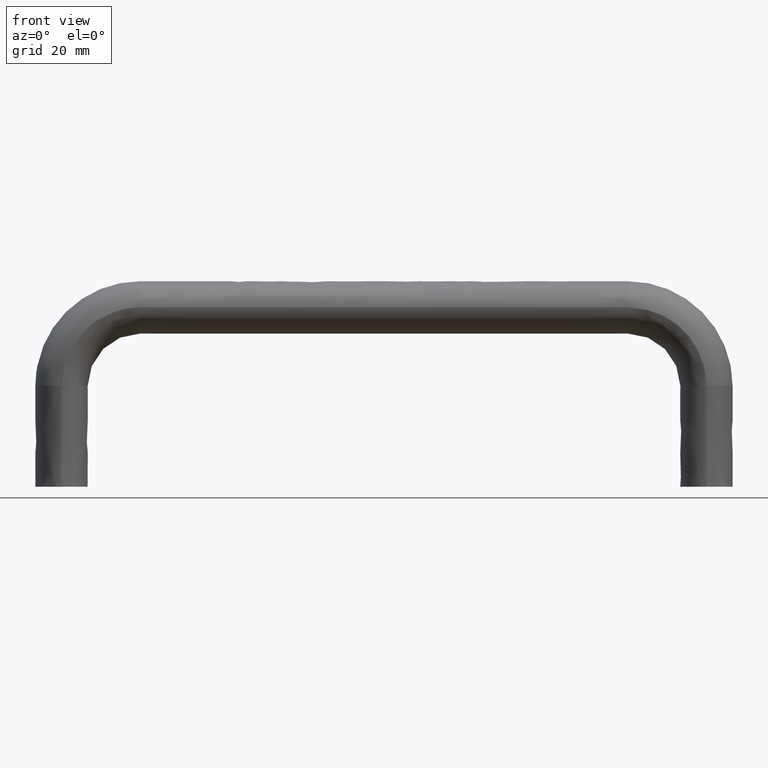
[diagram: clean part render]
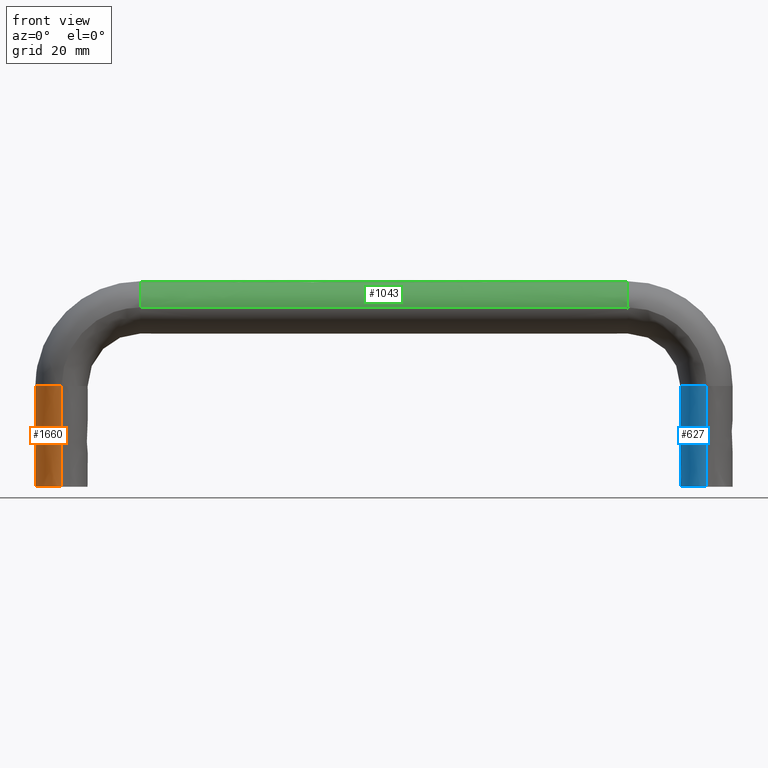
[diagram: same view with three faces highlighted in distinct colors, each labeled with its STEP entity id]
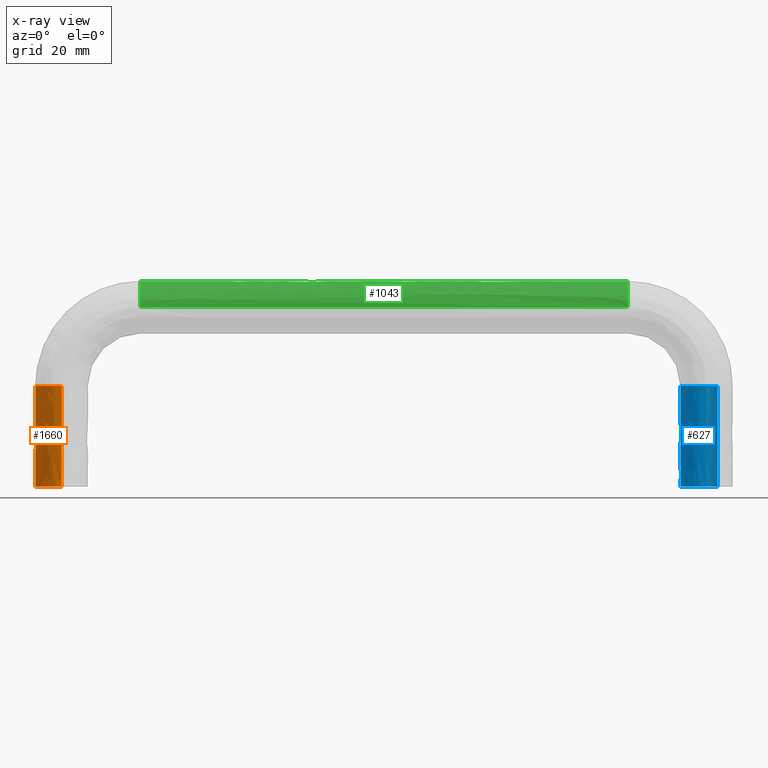
[diagram: x-ray of the same camera — body ghosted, the three highlighted faces saturated]
A machine part, front view with three faces highlighted in distinct colors.
The next image is the same camera in x-ray (body ghosted, the three faces saturated) — at least one of them is partly hidden behind the body in this view.
Their STEP definitions:

[orange] entity #1660 — the highlighted face is a freeform B-spline surface patch.
#1446=CARTESIAN_POINT('',(-2.765141685947758,9.039503756473197,25.0));
#1447=VERTEX_POINT('',#1446);
#1455=CARTESIAN_POINT('',(3.747003E-014,-10.0,25.0));
#1456=VERTEX_POINT('',#1455);
#1457=CARTESIAN_POINT('',(-2.765141685947758,9.039503756473197,25.0));
#1458=CARTESIAN_POINT('',(-3.442842478418609,8.550381046053946,25.0));
#1459=CARTESIAN_POINT('',(-4.066750527875190,7.885596350076813,25.0));
#1460=CARTESIAN_POINT('',(-5.799474873463780,5.219866587632820,25.0));
#1461=CARTESIAN_POINT('',(-6.500000000000000,2.617993877991495,25.0));
#1462=CARTESIAN_POINT('',(-6.500000000000000,-2.617993877991495,25.0));
#1463=CARTESIAN_POINT('',(-5.799474873463780,-5.219866587632820,25.0));
#1464=CARTESIAN_POINT('',(-3.392913281961335,-8.922269036098131,25.0));
#1465=CARTESIAN_POINT('',(-1.701696020694470,-10.0,25.0));
#1466=CARTESIAN_POINT('',(0.0,-10.0,25.0));
#1467=B_SPLINE_CURVE_WITH_KNOTS('',3,(#1457,#1458,#1459,#1460,#1461,#1462,#1463,#1464,#1465,#1466),.UNSPECIFIED.,.F.,.U.,(4,2,2,2,4),(0.570000000030455,0.625000000000000,0.750000000000000,0.875000000000000,1.0),.UNSPECIFIED.);
#1468=EDGE_CURVE('',#1447,#1456,#1467,.T.);
#1580=CARTESIAN_POINT('',(-2.765141685384861,9.039503756879462,0.0));
#1581=CARTESIAN_POINT('',(-3.442842477727653,8.550381046790173,0.0));
#1582=CARTESIAN_POINT('',(-4.066750527582020,7.885596350527845,0.0));
#1583=CARTESIAN_POINT('',(-5.799474873463780,5.219866587632820,0.0));
#1584=CARTESIAN_POINT('',(-6.500000000000000,2.617993877991495,0.0));
#1585=CARTESIAN_POINT('',(-6.500000000000000,-2.617993877991495,0.0));
#1586=CARTESIAN_POINT('',(-5.799474873463780,-5.219866587632820,0.0));
#1587=CARTESIAN_POINT('',(-3.392913281961335,-8.922269036098131,0.0));
#1588=CARTESIAN_POINT('',(-1.701696020694470,-10.0,0.0));
#1589=CARTESIAN_POINT('',(0.0,-10.0,0.0));
#1590=CARTESIAN_POINT('',(-2.765141685384861,9.039503756879462,8.333333330654059));
#1591=CARTESIAN_POINT('',(-3.442842477727653,8.550381046790173,8.333333330577235));
#1592=CARTESIAN_POINT('',(-4.066750527582020,7.885596350527845,8.333333330508435));
#1593=CARTESIAN_POINT('',(-5.799474873463780,5.219866587632820,8.333333330322921));
#1594=CARTESIAN_POINT('',(-6.500000000000000,2.617993877991495,8.333333330251030));
#1595=CARTESIAN_POINT('',(-6.500000000000000,-2.617993877991495,8.333333330251030));
#1596=CARTESIAN_POINT('',(-5.799474873463780,-5.219866587632820,8.333333330322921));
#1597=CARTESIAN_POINT('',(-3.392913281961335,-8.922269036098131,8.333333330580580));
#1598=CARTESIAN_POINT('',(-1.701696020694470,-10.0,8.333333330771989));
#1599=CARTESIAN_POINT('',(0.0,-10.0,8.333333330977931));
#1600=CARTESIAN_POINT('',(-2.765255463481482,9.039503756879462,16.666666670234068));
#1601=CARTESIAN_POINT('',(-3.442957903478828,8.550381046790173,16.666666670336351));
#1602=CARTESIAN_POINT('',(-4.066867394460879,7.885596350527845,16.666666670427951));
#1603=CARTESIAN_POINT('',(-5.799595541806690,5.219866587632820,16.666666670674950));
#1604=CARTESIAN_POINT('',(-6.500122100290400,2.617993877991495,16.666666670770699));
#1605=CARTESIAN_POINT('',(-6.500122100290400,-2.617993877991495,16.666666670770699));
#1606=CARTESIAN_POINT('',(-5.799595541806690,-5.219866587632820,16.666666670674950));
#1607=CARTESIAN_POINT('',(-3.393028670493060,-8.922269036098131,16.666666670331900));
#1608=CARTESIAN_POINT('',(-1.701807325264690,-10.0,16.666666670077049));
#1609=CARTESIAN_POINT('',(-0.000106634018478,-10.0,16.666666669802851));
#1610=CARTESIAN_POINT('',(-2.765141685384861,9.039503756879462,25.0));
#1611=CARTESIAN_POINT('',(-3.442842477727653,8.550381046790173,25.0));
#1612=CARTESIAN_POINT('',(-4.066750527582020,7.885596350527845,25.0));
#1613=CARTESIAN_POINT('',(-5.799474873463780,5.219866587632820,25.0));
#1614=CARTESIAN_POINT('',(-6.500000000000000,2.617993877991495,25.0));
#1615=CARTESIAN_POINT('',(-6.500000000000000,-2.617993877991495,25.0));
#1616=CARTESIAN_POINT('',(-5.799474873463780,-5.219866587632820,25.0));
#1617=CARTESIAN_POINT('',(-3.392913281961335,-8.922269036098131,25.0));
#1618=CARTESIAN_POINT('',(-1.701696020694470,-10.0,25.0));
#1619=CARTESIAN_POINT('',(0.0,-10.0,25.0));
#1620=B_SPLINE_SURFACE_WITH_KNOTS('',3,3,((#1580,#1590,#1600,#1610),(#1581,#1591,#1601,#1611),(#1582,#1592,#1602,#1612),(#1583,#1593,#1603,#1613),(#1584,#1594,#1604,#1614),(#1585,#1595,#1605,#1615),(#1586,#1596,#1606,#1616),(#1587,#1597,#1607,#1617),(#1588,#1598,#1608,#1618),(#1589,#1599,#1609,#1619)),.UNSPECIFIED.,.F.,.F.,.U.,(4,2,2,2,4),(4,4),(0.0,3.385193623603746,11.078815495430440,18.772437367257130,26.466059239083819),(0.0,25.000000004368740),.UNSPECIFIED.);
#1621=ORIENTED_EDGE('',*,*,#1468,.F.);
#1622=CARTESIAN_POINT('',(-2.767718893684363,9.043070626024541,-8.881784E-016));
#1623=VERTEX_POINT('',#1622);
#1624=CARTESIAN_POINT('',(-2.767718893684363,9.043070626024541,-8.881784E-016));
#1625=CARTESIAN_POINT('',(-2.766859824439105,9.041881669507809,8.333333330654059));
#1626=CARTESIAN_POINT('',(-2.766114533289547,9.040692712989802,16.666666670234068));
#1627=CARTESIAN_POINT('',(-2.765141685947758,9.039503756473197,25.0));
#1628=B_SPLINE_CURVE_WITH_KNOTS('',3,(#1624,#1625,#1626,#1627),.UNSPECIFIED.,.F.,.U.,(4,4),(0.0,0.107637498928565),.UNSPECIFIED.);
#1629=EDGE_CURVE('',#1623,#1447,#1628,.T.);
#1630=ORIENTED_EDGE('',*,*,#1629,.F.);
#1631=CARTESIAN_POINT('',(3.252607E-016,-10.0,0.0));
#1632=VERTEX_POINT('',#1631);
#1633=CARTESIAN_POINT('',(-2.767718893684363,9.043070626024541,-8.881784E-016));
#1634=CARTESIAN_POINT('',(-3.789574658975921,8.304902883799825,-8.612512E-016));
#1635=CARTESIAN_POINT('',(-4.593843456445049,7.067814539892249,-8.100902E-016));
#1636=CARTESIAN_POINT('',(-5.508528250209070,5.660889516472560,-7.519055E-016));
#1637=CARTESIAN_POINT('',(-6.003269068346501,3.824138429711683,-6.712987E-016));
#1638=CARTESIAN_POINT('',(-6.498383111718206,1.986001724805809,-5.906311E-016));
#1639=CARTESIAN_POINT('',(-6.498549654176726,-0.002007286109241,-4.998300E-016));
#1640=CARTESIAN_POINT('',(-6.498716322272424,-1.991516021929472,-4.089603E-016));
#1641=CARTESIAN_POINT('',(-6.004283234472764,-3.828126606434048,-3.217885E-016));
#1642=CARTESIAN_POINT('',(-5.509477153587726,-5.666122703084651,-2.345510E-016));
#1643=CARTESIAN_POINT('',(-4.595717391098286,-7.071727548601301,-1.642796E-016));
#1644=CARTESIAN_POINT('',(-3.681268301609643,-8.478392761853588,-9.395525E-017));
#1645=CARTESIAN_POINT('',(-2.487293505025900,-9.239001272481852,-5.128251E-017));
#1646=CARTESIAN_POINT('',(-1.292964223232612,-9.999835604013510,-8.597102E-018));
#1647=CARTESIAN_POINT('',(3.252607E-016,-10.0,0.0));
#1648=B_SPLINE_CURVE_WITH_KNOTS('',2,(#1633,#1634,#1635,#1636,#1637,#1638,#1639,#1640,#1641,#1642,#1643,#1644,#1645,#1646,#1647),.UNSPECIFIED.,.F.,.U.,(3,2,2,2,2,2,2,3),(0.140006435608934,0.250000000000000,0.375000000000000,0.500000000000000,0.625000000000000,0.750000000000000,0.875000000000000,1.0),.UNSPECIFIED.);
#1649=EDGE_CURVE('',#1623,#1632,#1648,.T.);
#1650=ORIENTED_EDGE('',*,*,#1649,.T.);
#1651=CARTESIAN_POINT('',(0.0,-10.0,0.0));
#1652=CARTESIAN_POINT('',(0.0,-10.0,8.333333330977931));
#1653=CARTESIAN_POINT('',(-0.000106634018477,-10.0,16.666666669802851));
#1654=CARTESIAN_POINT('',(0.0,-10.0,25.0));
#1655=B_SPLINE_CURVE_WITH_KNOTS('',3,(#1651,#1652,#1653,#1654),.UNSPECIFIED.,.F.,.U.,(4,4),(0.0,0.107637498928565),.UNSPECIFIED.);
#1656=EDGE_CURVE('',#1632,#1456,#1655,.T.);
#1657=ORIENTED_EDGE('',*,*,#1656,.T.);
#1658=EDGE_LOOP('',(#1621,#1630,#1650,#1657));
#1659=FACE_OUTER_BOUND('',#1658,.T.);
#1660=ADVANCED_FACE('',(#1659),#1620,.T.);

[blue] entity #627 — the highlighted face is a freeform B-spline surface patch.
#457=CARTESIAN_POINT('',(162.765148685947910,9.039503756473197,25.0));
#458=VERTEX_POINT('',#457);
#459=CARTESIAN_POINT('',(160.000007000000010,-10.0,25.0));
#460=VERTEX_POINT('',#459);
#474=CARTESIAN_POINT('',(160.000007000000010,-10.0,2.244912E-030));
#475=VERTEX_POINT('',#474);
#476=CARTESIAN_POINT('',(160.000007000000010,-10.0,25.0));
#477=CARTESIAN_POINT('',(160.000113633782490,-10.0,16.666666669802851));
#478=CARTESIAN_POINT('',(160.000007000000010,-10.0,8.333333330977830));
#479=CARTESIAN_POINT('',(160.000007000000010,-10.0,9.022597E-030));
#480=B_SPLINE_CURVE_WITH_KNOTS('',3,(#476,#477,#478,#479),.UNSPECIFIED.,.F.,.U.,(4,4),(0.892362501071435,1.0),.UNSPECIFIED.);
#481=EDGE_CURVE('',#460,#475,#480,.T.);
#483=CARTESIAN_POINT('',(162.767738318758490,9.043088330871754,-2.464482E-016));
#484=VERTEX_POINT('',#483);
#503=CARTESIAN_POINT('',(162.765148685947910,9.039503756473197,25.0));
#504=CARTESIAN_POINT('',(162.766125674772210,9.040698614605537,16.666666670234068));
#505=CARTESIAN_POINT('',(162.766875107821900,9.041893472739286,8.333333330653948));
#506=CARTESIAN_POINT('',(162.767738318758490,9.043088330871754,-2.464482E-016));
#507=B_SPLINE_CURVE_WITH_KNOTS('',3,(#503,#504,#505,#506),.UNSPECIFIED.,.F.,.U.,(4,4),(0.892362501071435,1.0),.UNSPECIFIED.);
#508=EDGE_CURVE('',#458,#484,#507,.T.);
#513=CARTESIAN_POINT('',(160.000007000000010,-10.0,25.0));
#514=CARTESIAN_POINT('',(158.298310979305510,-10.0,25.0));
#515=CARTESIAN_POINT('',(156.607093718038500,-8.922269036098131,25.0));
#516=CARTESIAN_POINT('',(154.200532126535990,-5.219866587632820,25.0));
#517=CARTESIAN_POINT('',(153.500007000000010,-2.617993877991495,25.0));
#518=CARTESIAN_POINT('',(153.500007000000010,2.617993877991495,25.0));
#519=CARTESIAN_POINT('',(154.200532126535990,5.219866587632830,25.0));
#520=CARTESIAN_POINT('',(156.607093718038500,8.922269036098131,25.0));
#521=CARTESIAN_POINT('',(158.298310979305510,10.0,25.0));
#522=CARTESIAN_POINT('',(160.952956771588900,10.0,25.0));
#523=CARTESIAN_POINT('',(161.902620404221410,9.662023569720375,25.0));
#524=CARTESIAN_POINT('',(162.765148685384990,9.039503756879462,25.0));
#525=CARTESIAN_POINT('',(160.000113633782490,-10.0,16.666666669802851));
#526=CARTESIAN_POINT('',(158.298412942535010,-10.0,16.666666669528649));
#527=CARTESIAN_POINT('',(156.607190375280000,-8.922269036098131,16.666666669238548));
#528=CARTESIAN_POINT('',(154.200620301817000,-5.219866587632820,16.666666668807000));
#529=CARTESIAN_POINT('',(153.500092469966010,-2.617993877991495,16.666666668677649));
#530=CARTESIAN_POINT('',(153.500092469966010,2.617993877991495,16.666666668677649));
#531=CARTESIAN_POINT('',(154.200620301681000,5.219866587632830,16.666666668806950));
#532=CARTESIAN_POINT('',(156.607190375280000,8.922269036098131,16.666666669238548));
#533=CARTESIAN_POINT('',(158.298412942535010,10.0,16.666666669528649));
#534=CARTESIAN_POINT('',(160.953066020881100,10.0,16.666666669956399));
#535=CARTESIAN_POINT('',(161.902732085082310,9.662023569720375,16.666666670103879));
#536=CARTESIAN_POINT('',(162.765262463272790,9.039503756879462,16.666666670234068));
#537=CARTESIAN_POINT('',(160.000007000000010,-10.0,8.333333330977830));
#538=CARTESIAN_POINT('',(158.298310979305510,-10.0,8.333333331183781));
#539=CARTESIAN_POINT('',(156.607093718038500,-8.922269036098131,8.333333331401660));
#540=CARTESIAN_POINT('',(154.200532126535990,-5.219866587632820,8.333333331725779));
#541=CARTESIAN_POINT('',(153.500007000000010,-2.617993877991495,8.333333331822900));
#542=CARTESIAN_POINT('',(153.500007000000010,2.617993877991495,8.333333331822900));
#543=CARTESIAN_POINT('',(154.200532126535990,5.219866587632830,8.333333331725800));
#544=CARTESIAN_POINT('',(156.607093718038500,8.922269036098131,8.333333331401660));
#545=CARTESIAN_POINT('',(158.298310979305510,10.0,8.333333331183781));
#546=CARTESIAN_POINT('',(160.952956771588900,10.0,8.333333330862498));
#547=CARTESIAN_POINT('',(161.902620404221410,9.662023569720375,8.333333330751726));
#548=CARTESIAN_POINT('',(162.765148685384990,9.039503756879462,8.333333330653948));
#549=CARTESIAN_POINT('',(160.000007000000010,-10.0,9.003722E-030));
#550=CARTESIAN_POINT('',(158.298310979305510,-10.0,3.027664E-016));
#551=CARTESIAN_POINT('',(156.607093718038500,-8.922269036098131,6.036683E-016));
#552=CARTESIAN_POINT('',(154.200532126535990,-5.219866587632820,1.031845E-015));
#553=CARTESIAN_POINT('',(153.500007000000010,-2.617993877991495,1.156482E-015));
#554=CARTESIAN_POINT('',(153.500007000000010,2.617993877991495,1.156482E-015));
#555=CARTESIAN_POINT('',(154.200532126535990,5.219866587632830,1.031845E-015));
#556=CARTESIAN_POINT('',(156.607093718038500,8.922269036098131,6.036683E-016));
#557=CARTESIAN_POINT('',(158.298310979305510,10.0,3.027664E-016));
#558=CARTESIAN_POINT('',(160.952956771588900,10.0,-1.695492E-016));
#559=CARTESIAN_POINT('',(161.902620404221410,9.662023569720375,-3.385137E-016));
#560=CARTESIAN_POINT('',(162.765148685384990,9.039503756879462,-4.919750E-016));
#561=B_SPLINE_SURFACE_WITH_KNOTS('',3,3,((#513,#525,#537,#549),(#514,#526,#538,#550),(#515,#527,#539,#551),(#516,#528,#540,#552),(#517,#529,#541,#553),(#518,#530,#542,#554),(#519,#531,#543,#555),(#520,#532,#544,#556),(#521,#533,#545,#557),(#522,#534,#546,#558),(#523,#535,#547,#559),(#524,#536,#548,#560)),.UNSPECIFIED.,.F.,.F.,.U.,(4,2,2,2,2,4),(4,4),(0.0,7.693622043938025,15.387244087876050,23.080866131814080,30.774488175752101,35.082916520357387),(0.0,25.000000003826312),.UNSPECIFIED.);
#562=CARTESIAN_POINT('',(160.000007000000010,10.0,25.0));
#563=VERTEX_POINT('',#562);
#564=CARTESIAN_POINT('',(160.000007000000010,10.0,25.0));
#565=CARTESIAN_POINT('',(160.952956772003490,10.0,25.0));
#566=CARTESIAN_POINT('',(161.902620405047710,9.662023569426289,25.0));
#567=CARTESIAN_POINT('',(162.765148685947910,9.039503756473197,25.0));
#568=B_SPLINE_CURVE_WITH_KNOTS('',3,(#564,#565,#566,#567),.UNSPECIFIED.,.F.,.U.,(4,4),(0.500000000000000,0.570000000030455),.UNSPECIFIED.);
#569=EDGE_CURVE('',#563,#458,#568,.T.);
#570=ORIENTED_EDGE('',*,*,#569,.T.);
#571=ORIENTED_EDGE('',*,*,#508,.T.);
#572=CARTESIAN_POINT('',(160.000007000000010,10.0,8.642611E-030));
#573=VERTEX_POINT('',#572);
#574=CARTESIAN_POINT('',(160.000007000000010,10.0,8.642611E-030));
#575=CARTESIAN_POINT('',(161.291915429159100,9.998305116526064,-1.271980E-016));
#576=CARTESIAN_POINT('',(162.485151365501590,9.235614506320625,-2.238775E-016));
#577=CARTESIAN_POINT('',(162.628461116350310,9.144014012240421,-2.354889E-016));
#578=CARTESIAN_POINT('',(162.767738318758490,9.043088330871754,-2.464482E-016));
#579=B_SPLINE_CURVE_WITH_KNOTS('',2,(#574,#575,#576,#577,#578),.UNSPECIFIED.,.F.,.U.,(3,2,3),(0.0,0.125000000000000,0.140017178753207),.UNSPECIFIED.);
#580=EDGE_CURVE('',#573,#484,#579,.T.);
#581=ORIENTED_EDGE('',*,*,#580,.F.);
#582=CARTESIAN_POINT('',(160.000007000000010,-9.999999999999991,-3.972231E-030));
#583=CARTESIAN_POINT('',(158.707017830758190,-9.999801078588815,2.300491E-016));
#584=CARTESIAN_POINT('',(157.512564689626910,-9.238795325112863,4.425666E-016));
#585=CARTESIAN_POINT('',(156.318466070473990,-8.478015443423745,6.550211E-016));
#586=CARTESIAN_POINT('',(155.403812922287390,-7.071067811865489,8.177565E-016));
#587=CARTESIAN_POINT('',(154.489849254881900,-5.665180760871210,9.803692E-016));
#588=CARTESIAN_POINT('',(153.994790038676600,-3.826834323650897,1.068450E-015));
#589=CARTESIAN_POINT('',(153.500104006350200,-1.989873662579379,1.156465E-015));
#590=CARTESIAN_POINT('',(153.500007000000010,-1.558541E-016,1.156482E-015));
#591=CARTESIAN_POINT('',(153.499910066774790,1.988373662613916,1.156500E-015));
#592=CARTESIAN_POINT('',(153.994790038676600,3.826834323650897,1.068450E-015));
#593=CARTESIAN_POINT('',(154.489296961799000,5.663909122368416,9.804675E-016));
#594=CARTESIAN_POINT('',(155.403812922287390,7.071067811865473,8.177565E-016));
#595=CARTESIAN_POINT('',(156.317639505371400,8.477165761641185,6.551681E-016));
#596=CARTESIAN_POINT('',(157.512564689626910,9.238795325112870,4.425666E-016));
#597=CARTESIAN_POINT('',(158.706511052322810,9.999801000623172,2.301393E-016));
#598=CARTESIAN_POINT('',(160.000007000000010,9.999999999999996,8.642611E-030));
#599=B_SPLINE_CURVE_WITH_KNOTS('',2,(#582,#583,#584,#585,#586,#587,#588,#589,#590,#591,#592,#593,#594,#595,#596,#597,#598),.UNSPECIFIED.,.F.,.U.,(3,2,2,2,2,2,2,2,3),(0.0,0.125000000000000,0.250000000000000,0.375000000000000,0.500000000000000,0.625000000000000,0.750000000000000,0.875000000000000,1.0),.UNSPECIFIED.);
#600=EDGE_CURVE('',#475,#573,#599,.T.);
#601=ORIENTED_EDGE('',*,*,#600,.F.);
#602=ORIENTED_EDGE('',*,*,#481,.F.);
#603=CARTESIAN_POINT('',(156.870789612720390,8.755444309404471,25.0));
#604=VERTEX_POINT('',#603);
#605=CARTESIAN_POINT('',(160.000007000000010,-10.0,25.0));
#606=CARTESIAN_POINT('',(158.298310979305510,-10.0,25.0));
#607=CARTESIAN_POINT('',(156.607093718038500,-8.922269036098131,25.0));
#608=CARTESIAN_POINT('',(154.200532126535990,-5.219866587632820,25.0));
#609=CARTESIAN_POINT('',(153.500007000000010,-2.617993877991495,25.0));
#610=CARTESIAN_POINT('',(153.500007000000010,2.617993877991495,25.0));
#611=CARTESIAN_POINT('',(154.200532126535990,5.219866587632830,25.0));
#612=CARTESIAN_POINT('',(155.836994008738600,7.737500252559875,25.0));
#613=CARTESIAN_POINT('',(156.333411661115210,8.303690947524233,25.0));
#614=CARTESIAN_POINT('',(156.870789612720390,8.755444309404471,25.0));
#615=B_SPLINE_CURVE_WITH_KNOTS('',3,(#605,#606,#607,#608,#609,#610,#611,#612,#613,#614),.UNSPECIFIED.,.F.,.U.,(4,2,2,2,4),(0.0,0.125000000000000,0.250000000000000,0.375000000000000,0.419999999998018),.UNSPECIFIED.);
#616=EDGE_CURVE('',#460,#604,#615,.T.);
#617=ORIENTED_EDGE('',*,*,#616,.T.);
#618=CARTESIAN_POINT('',(156.870789612720390,8.755444309404471,25.0));
#619=CARTESIAN_POINT('',(157.826128193318790,9.558561397163917,25.0));
#620=CARTESIAN_POINT('',(158.910921546728500,10.0,25.0));
#621=CARTESIAN_POINT('',(160.000007000000010,10.0,25.0));
#622=B_SPLINE_CURVE_WITH_KNOTS('',3,(#618,#619,#620,#621),.UNSPECIFIED.,.F.,.U.,(4,4),(0.419999999998018,0.500000000000000),.UNSPECIFIED.);
#623=EDGE_CURVE('',#604,#563,#622,.T.);
#624=ORIENTED_EDGE('',*,*,#623,.T.);
#625=EDGE_LOOP('',(#570,#571,#581,#601,#602,#617,#624));
#626=FACE_OUTER_BOUND('',#625,.T.);
#627=ADVANCED_FACE('',(#626),#561,.T.);

[green] entity #1043 — the highlighted face is a freeform B-spline surface patch.
#774=CARTESIAN_POINT('',(140.500007000000010,9.039503756675209,47.265149685667708));
#775=VERTEX_POINT('',#774);
#783=CARTESIAN_POINT('',(140.500007000000010,-10.0,44.500007999999852));
#784=VERTEX_POINT('',#783);
#785=CARTESIAN_POINT('',(140.500007000000010,9.039503756675209,47.265149685667708));
#786=CARTESIAN_POINT('',(140.500007000000010,8.550381046420030,47.942850478074888));
#787=CARTESIAN_POINT('',(140.500007000000010,7.885596350301086,48.566758527729263));
#788=CARTESIAN_POINT('',(140.500007000000010,5.219866587632820,50.299482873463603));
#789=CARTESIAN_POINT('',(140.500007000000010,2.617993877991495,51.000007999999902));
#790=CARTESIAN_POINT('',(140.500007000000010,-2.617993877991495,51.000007999999902));
#791=CARTESIAN_POINT('',(140.500007000000010,-5.219866587632820,50.299482873463603));
#792=CARTESIAN_POINT('',(140.500007000000010,-8.922269036098131,47.892921281961200));
#793=CARTESIAN_POINT('',(140.500007000000010,-10.0,46.201704020694301));
#794=CARTESIAN_POINT('',(140.500007000000010,-10.0,44.500007999999852));
#795=B_SPLINE_CURVE_WITH_KNOTS('',3,(#785,#786,#787,#788,#789,#790,#791,#792,#793,#794),.UNSPECIFIED.,.F.,.U.,(4,2,2,2,4),(0.570000000015312,0.625000000000000,0.750000000000000,0.875000000000000,1.0),.UNSPECIFIED.);
#796=EDGE_CURVE('',#775,#784,#795,.T.);
#908=CARTESIAN_POINT('',(18.894824786262539,9.096864509780554,47.183389790919612));
#909=CARTESIAN_POINT('',(18.894824486444879,8.603423732425572,47.890818507118432));
#910=CARTESIAN_POINT('',(18.894823712944490,6.410859990290986,49.976152383300899));
#911=CARTESIAN_POINT('',(18.894823390771840,2.617716080889236,50.998094912508932));
#912=CARTESIAN_POINT('',(18.894823390015841,-2.617993877991495,50.997916241434929));
#913=CARTESIAN_POINT('',(18.894823614271608,-5.219866585683339,50.297358774782523));
#914=CARTESIAN_POINT('',(18.894824478372499,-8.954109973809272,47.869980487913672));
#915=CARTESIAN_POINT('',(18.894825189908470,-10.036828642468560,46.141042920507218));
#916=CARTESIAN_POINT('',(18.894826057234461,-10.0,44.409753987070573));
#917=CARTESIAN_POINT('',(21.617336157107651,9.096864509780554,47.196693133919553));
#918=CARTESIAN_POINT('',(21.617337609855571,8.603423732425572,47.903891953696380));
#919=CARTESIAN_POINT('',(21.617341357803848,6.410859990290989,49.988605092971497));
#920=CARTESIAN_POINT('',(21.617342918871429,2.617716080889236,51.010274452987410));
#921=CARTESIAN_POINT('',(21.617342922534618,-2.617993877991494,51.010095404486712));
#922=CARTESIAN_POINT('',(21.617341835917170,-5.219866585683341,50.309726979905861));
#923=CARTESIAN_POINT('',(21.617337648969780,-8.954109973809272,47.883051713012136));
#924=CARTESIAN_POINT('',(21.617334201266249,-10.036828642468560,46.154665905862373));
#925=CARTESIAN_POINT('',(21.617329998691851,-10.0,44.424006770535946));
#926=CARTESIAN_POINT('',(24.339939026289361,9.096864509780550,47.185675921533779));
#927=CARTESIAN_POINT('',(24.339939026560110,8.603423732425572,47.893065273012802));
#928=CARTESIAN_POINT('',(24.339939027258641,6.410859990290984,49.978292861614953));
#929=CARTESIAN_POINT('',(24.339939027549580,2.617716080889236,51.000188616590378));
#930=CARTESIAN_POINT('',(24.339939027550269,-2.617993877991495,51.000009880890332));
#931=CARTESIAN_POINT('',(24.339939027347750,-5.219866585683337,50.299484783546312));
#932=CARTESIAN_POINT('',(24.339939026567411,-8.954109973809272,47.872226873428403));
#933=CARTESIAN_POINT('',(24.339939025924849,-10.036828642468560,46.143383782863808));
#934=CARTESIAN_POINT('',(24.339939025141600,-10.0,44.412202688539750));
#935=CARTESIAN_POINT('',(62.354169145775593,9.096864509780554,47.185673858020778));
#936=CARTESIAN_POINT('',(62.354169145774407,8.603423732425574,47.893063245171319));
#937=CARTESIAN_POINT('',(62.354169145771372,6.410859990290981,49.978290930088981));
#938=CARTESIAN_POINT('',(62.354169145770108,2.617716080889235,51.000186727450277));
#939=CARTESIAN_POINT('',(62.354169145770108,-2.617993877991493,51.000007991808793));
#940=CARTESIAN_POINT('',(62.354169145770989,-5.219866585683337,50.299482865132383));
#941=CARTESIAN_POINT('',(62.354169145774392,-8.954109973809272,47.872224845931562));
#942=CARTESIAN_POINT('',(62.354169145777192,-10.036828642468549,46.143381669754007));
#943=CARTESIAN_POINT('',(62.354169145780602,-9.999999999999991,44.412200477708431));
#944=CARTESIAN_POINT('',(97.645837854366931,9.096864509780557,47.185673858017019));
#945=CARTESIAN_POINT('',(97.645837854368111,8.603423732425569,47.893063245167447));
#946=CARTESIAN_POINT('',(97.645837854371095,6.410859990290990,49.978290930085322));
#947=CARTESIAN_POINT('',(97.645837854372388,2.617716080889237,51.000186727446533));
#948=CARTESIAN_POINT('',(97.645837854372388,-2.617993877991496,51.000007991805063));
#949=CARTESIAN_POINT('',(97.645837854371507,-5.219866585683342,50.299482865128653));
#950=CARTESIAN_POINT('',(97.645837854368125,-8.954109973809281,47.872224845927832));
#951=CARTESIAN_POINT('',(97.645837854365283,-10.036828642468571,46.143381669750248));
#952=CARTESIAN_POINT('',(97.645837854361901,-10.000000000000011,44.412200477704651));
#953=CARTESIAN_POINT('',(135.660067973507610,9.096864509780552,47.185675922412251));
#954=CARTESIAN_POINT('',(135.660067973236610,8.603423732425572,47.893065273891267));
#955=CARTESIAN_POINT('',(135.660067972537600,6.410859990290986,49.978292862493412));
#956=CARTESIAN_POINT('',(135.660067972246400,2.617716080889236,51.000188617468837));
#957=CARTESIAN_POINT('',(135.660067972245710,-2.617993877991495,51.000009881768790));
#958=CARTESIAN_POINT('',(135.660067972448390,-5.219866585683339,50.299484784424763));
#959=CARTESIAN_POINT('',(135.660067973229300,-8.954109973809272,47.872226874306868));
#960=CARTESIAN_POINT('',(135.660067973872290,-10.036828642468560,46.143383783742252));
#961=CARTESIAN_POINT('',(135.660067974656190,-10.0,44.412202689418223));
#962=CARTESIAN_POINT('',(138.382670905115110,9.096864509780550,47.196702452361663));
#963=CARTESIAN_POINT('',(138.382669451285210,8.603423732425572,47.903901272146783));
#964=CARTESIAN_POINT('',(138.382665700415400,6.410859990290986,49.988614411443400));
#965=CARTESIAN_POINT('',(138.382664138061900,2.617716080889236,51.010283771467847));
#966=CARTESIAN_POINT('',(138.382664134397000,-2.617993877991495,51.010104722967156));
#967=CARTESIAN_POINT('',(138.382665221904400,-5.219866585683339,50.309736298380372));
#968=CARTESIAN_POINT('',(138.382669412160510,-8.954109973809276,47.883061031462638));
#969=CARTESIAN_POINT('',(138.382672862460990,-10.036828642468560,46.154675224293278));
#970=CARTESIAN_POINT('',(138.382677067999510,-10.0,44.424016088942913));
#971=CARTESIAN_POINT('',(141.105182200260710,9.096864509780554,47.183397790970247));
#972=CARTESIAN_POINT('',(141.105182500301590,8.603423732425572,47.890826507167333));
#973=CARTESIAN_POINT('',(141.105183274404990,6.410859990290986,49.976160383345281));
#974=CARTESIAN_POINT('',(141.105183596843010,2.617716080889236,50.998102912551502));
#975=CARTESIAN_POINT('',(141.105183597599310,-2.617993877991495,50.997924241477492));
#976=CARTESIAN_POINT('',(141.105183373159890,-5.219866585683339,50.297366774826337));
#977=CARTESIAN_POINT('',(141.105182508376200,-8.954109973809272,47.869988487962537));
#978=CARTESIAN_POINT('',(141.105181796304210,-10.036828642468560,46.141050920560197));
#979=CARTESIAN_POINT('',(141.105180928366510,-10.0,44.409761987128597));
#980=B_SPLINE_SURFACE_WITH_KNOTS('',3,3,((#908,#917,#926,#935,#944,#953,#962,#971),(#909,#918,#927,#936,#945,#954,#963,#972),(#910,#919,#928,#937,#946,#955,#964,#973),(#911,#920,#929,#938,#947,#956,#965,#974),(#912,#921,#930,#939,#948,#957,#966,#975),(#913,#922,#931,#940,#949,#958,#967,#976),(#914,#923,#932,#941,#950,#959,#968,#977),(#915,#924,#933,#942,#951,#960,#969,#978),(#916,#925,#934,#943,#952,#961,#970,#979)),.UNSPECIFIED.,.F.,.F.,.U.,(4,1,2,2,4),(4,2,2,4),(0.0,3.517889964502963,11.212312465511420,18.906734966519871,26.733501531587621),(0.0,8.167736024305777,114.043413794613800,122.211149818360200),.UNSPECIFIED.);
#981=ORIENTED_EDGE('',*,*,#796,.F.);
#982=CARTESIAN_POINT('',(19.500000000000000,9.039503756675209,47.265141685667807));
#983=VERTEX_POINT('',#982);
#984=CARTESIAN_POINT('',(19.500000000000000,9.039503756675209,47.265141685667807));
#985=CARTESIAN_POINT('',(22.020797964139032,9.039503756879462,47.274604278912413));
#986=CARTESIAN_POINT('',(24.541666958346301,9.039503756879462,47.265149685384714));
#987=CARTESIAN_POINT('',(29.583333916653761,9.039503756879462,47.265149685384714));
#988=CARTESIAN_POINT('',(32.104167395828803,9.039503756879462,47.265149685384714));
#989=CARTESIAN_POINT('',(39.666667833342501,9.039503756879462,47.265149685384714));
#990=CARTESIAN_POINT('',(44.708334791657499,9.039503756879462,47.265149685384714));
#991=CARTESIAN_POINT('',(59.833335666684903,9.039503756879462,47.265149685384714));
#992=CARTESIAN_POINT('',(69.916669583390004,9.039503756879462,47.265149685384714));
#993=CARTESIAN_POINT('',(90.083337416610007,9.039503756879462,47.265149685384714));
#994=CARTESIAN_POINT('',(100.166671333465000,9.039503756879462,47.265149685384714));
#995=CARTESIAN_POINT('',(115.291672208267600,9.039503756879462,47.265149685384714));
#996=CARTESIAN_POINT('',(120.333339166627600,9.039503756879462,47.265149685384714));
#997=CARTESIAN_POINT('',(127.895839604186190,9.039503756879462,47.265149685384714));
#998=CARTESIAN_POINT('',(130.416673083313810,9.039503756879462,47.265149685384714));
#999=CARTESIAN_POINT('',(135.458340041686200,9.039503756879462,47.265149685384714));
#1000=CARTESIAN_POINT('',(137.979209089564510,9.039503756879462,47.274612278710521));
#1001=CARTESIAN_POINT('',(140.500007000000010,9.039503756675209,47.265149685667708));
#1002=B_SPLINE_CURVE_WITH_KNOTS('',3,(#984,#985,#986,#987,#988,#989,#990,#991,#992,#993,#994,#995,#996,#997,#998,#999,#1000,#1001),.UNSPECIFIED.,.F.,.U.,(4,2,2,2,2,2,2,2,4),(0.239517237523622,0.272077582833169,0.304637928142717,0.369758618761811,0.500000000000000,0.630241381238189,0.695362071857284,0.727922417166831,0.760482762476378),.UNSPECIFIED.);
#1003=EDGE_CURVE('',#983,#775,#1002,.T.);
#1004=ORIENTED_EDGE('',*,*,#1003,.F.);
#1005=CARTESIAN_POINT('',(19.500000000000000,-10.0,44.499999999999950));
#1006=VERTEX_POINT('',#1005);
#1007=CARTESIAN_POINT('',(19.500000000000000,9.039503756675209,47.265141685667807));
#1008=CARTESIAN_POINT('',(19.500000000000000,8.550381046420030,47.942842478074994));
#1009=CARTESIAN_POINT('',(19.500000000000000,7.885596350301086,48.566750527729369));
#1010=CARTESIAN_POINT('',(19.500000000000000,5.219866587632820,50.299474873463701));
#1011=CARTESIAN_POINT('',(19.500000000000000,2.617993877991495,51.0));
#1012=CARTESIAN_POINT('',(19.500000000000000,-2.617993877991495,51.0));
#1013=CARTESIAN_POINT('',(19.500000000000000,-5.219866587632820,50.299474873463701));
#1014=CARTESIAN_POINT('',(19.500000000000000,-8.922269036098131,47.892913281961299));
#1015=CARTESIAN_POINT('',(19.500000000000000,-10.0,46.201696020694399));
#1016=CARTESIAN_POINT('',(19.500000000000000,-10.0,44.499999999999950));
#1017=B_SPLINE_CURVE_WITH_KNOTS('',3,(#1007,#1008,#1009,#1010,#1011,#1012,#1013,#1014,#1015,#1016),.UNSPECIFIED.,.F.,.U.,(4,2,2,2,4),(0.570000000015312,0.625000000000000,0.750000000000000,0.875000000000000,1.0),.UNSPECIFIED.);
#1018=EDGE_CURVE('',#983,#1006,#1017,.T.);
#1019=ORIENTED_EDGE('',*,*,#1018,.T.);
#1020=CARTESIAN_POINT('',(19.500000000000000,-10.0,44.499999999999950));
#1021=CARTESIAN_POINT('',(22.020792714456480,-10.0,44.510134661153558));
#1022=CARTESIAN_POINT('',(24.541666958346301,-10.0,44.500007999999852));
#1023=CARTESIAN_POINT('',(29.583333916653750,-10.0,44.500007999999852));
#1024=CARTESIAN_POINT('',(32.104167395828803,-10.0,44.500007999999852));
#1025=CARTESIAN_POINT('',(39.666667833342501,-10.0,44.500007999999852));
#1026=CARTESIAN_POINT('',(44.708334791657499,-10.0,44.500007999999852));
#1027=CARTESIAN_POINT('',(59.833335666684903,-10.0,44.500007999999852));
#1028=CARTESIAN_POINT('',(69.916669583390004,-10.0,44.500007999999852));
#1029=CARTESIAN_POINT('',(90.083337416610007,-10.0,44.500007999999852));
#1030=CARTESIAN_POINT('',(100.166671333465000,-10.0,44.500007999999852));
#1031=CARTESIAN_POINT('',(115.291672208267600,-10.0,44.500007999999852));
#1032=CARTESIAN_POINT('',(120.333339166627600,-10.0,44.500007999999852));
#1033=CARTESIAN_POINT('',(127.895839604186190,-10.0,44.500007999999852));
#1034=CARTESIAN_POINT('',(130.416673083313810,-10.0,44.500007999999852));
#1035=CARTESIAN_POINT('',(135.458340041686200,-10.0,44.500007999999852));
#1036=CARTESIAN_POINT('',(137.979214343062890,-10.0,44.510142660921787));
#1037=CARTESIAN_POINT('',(140.500007000000010,-10.0,44.500007999999852));
#1038=B_SPLINE_CURVE_WITH_KNOTS('',3,(#1020,#1021,#1022,#1023,#1024,#1025,#1026,#1027,#1028,#1029,#1030,#1031,#1032,#1033,#1034,#1035,#1036,#1037),.UNSPECIFIED.,.F.,.U.,(4,2,2,2,2,2,2,2,4),(0.239517237523622,0.272077582833169,0.304637928142717,0.369758618761811,0.500000000000000,0.630241381238189,0.695362071857284,0.727922417166831,0.760482762476378),.UNSPECIFIED.);
#1039=EDGE_CURVE('',#1006,#784,#1038,.T.);
#1040=ORIENTED_EDGE('',*,*,#1039,.T.);
#1041=EDGE_LOOP('',(#981,#1004,#1019,#1040));
#1042=FACE_OUTER_BOUND('',#1041,.T.);
#1043=ADVANCED_FACE('',(#1042),#980,.T.);